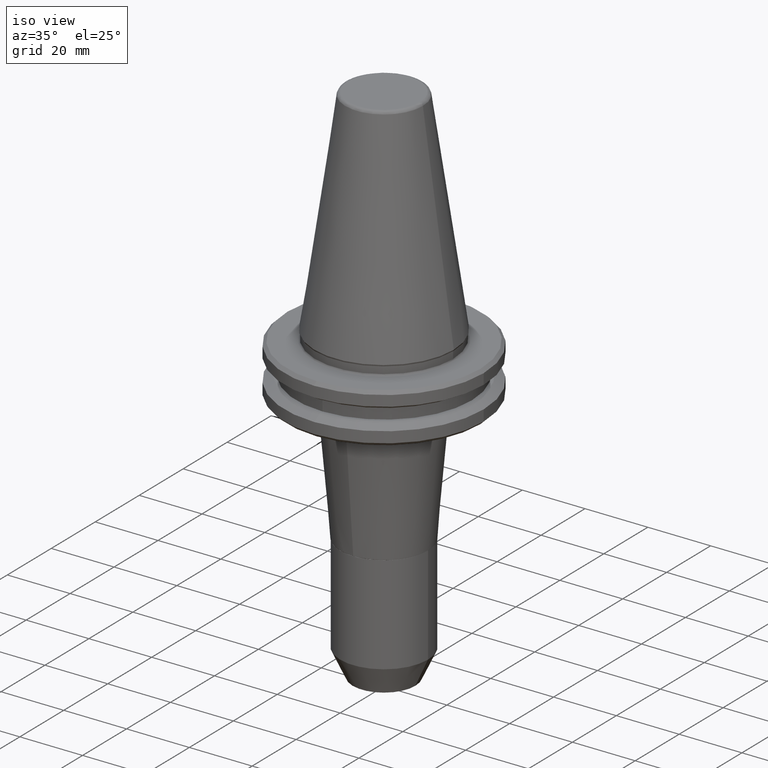
[diagram: clean part render]
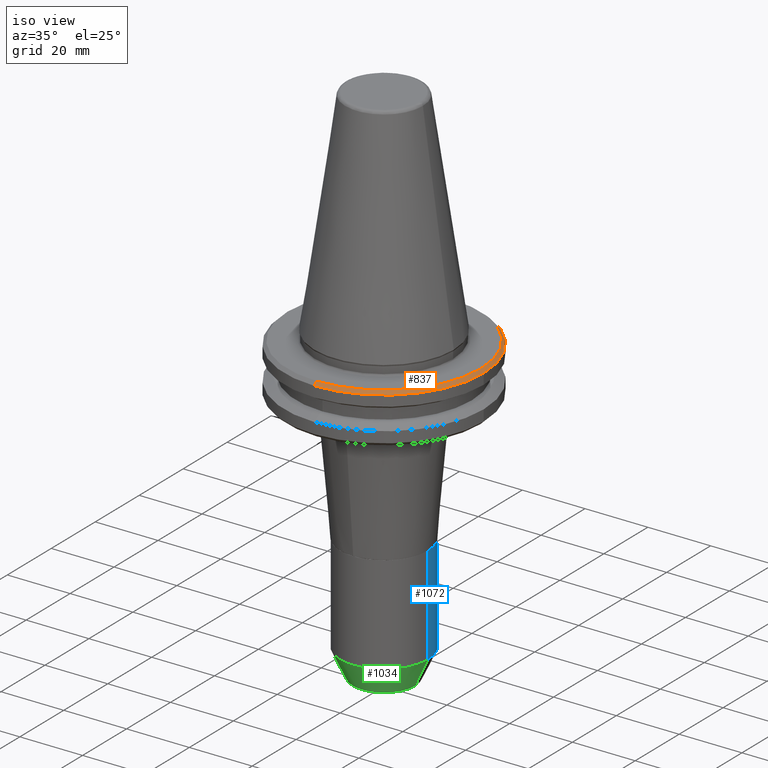
[diagram: same view with three faces highlighted in distinct colors, each labeled with its STEP entity id]
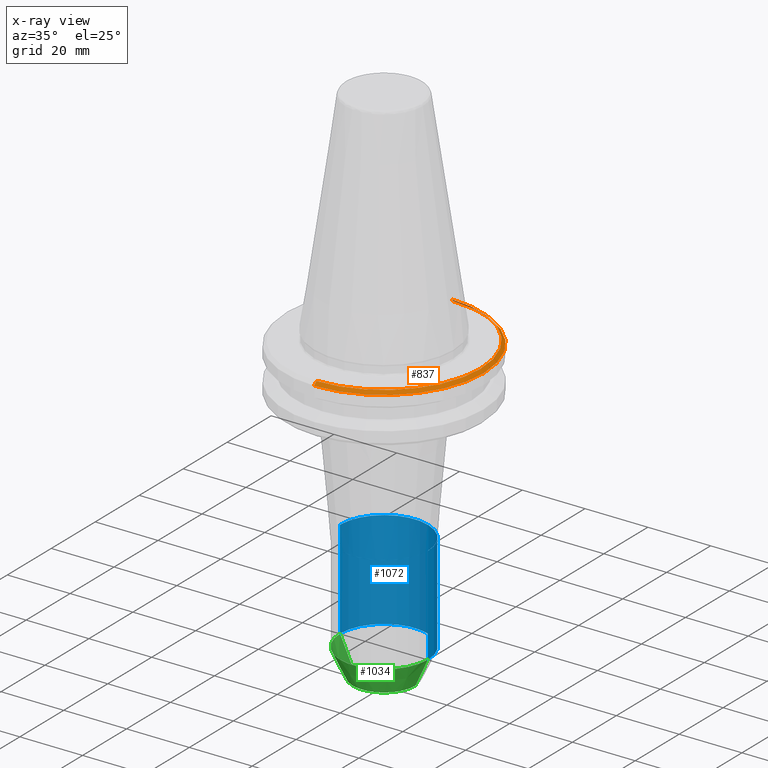
[diagram: x-ray of the same camera — body ghosted, the three highlighted faces saturated]
A machine part, iso view with three faces highlighted in distinct colors.
The next image is the same camera in x-ray (body ghosted, the three faces saturated) — at least one of them is partly hidden behind the body in this view.
Their STEP definitions:

[orange] entity #837 — the highlighted conical surface has half-angle 45 deg.
#10 = LINE ( 'NONE', #776, #688 ) ;
#29 = AXIS2_PLACEMENT_3D ( 'NONE', #595, #594, #592 ) ;
#81 = CARTESIAN_POINT ( 'NONE',  ( 1.761665219730700800E-034, 31.75000000000014600, -4.200000000000148500 ) ) ;
#166 = VERTEX_POINT ( 'NONE', #1407 ) ;
#189 = AXIS2_PLACEMENT_3D ( 'NONE', #289, #288, #286 ) ;
#238 = CONICAL_SURFACE ( 'NONE', #676, 31.63284271250072500, 0.7853981633974475000 ) ;
#286 = DIRECTION ( 'NONE',  ( -1.000000000000000000, 0.0000000000000000000, 0.0000000000000000000 ) ) ;
#288 = DIRECTION ( 'NONE',  ( -0.0000000000000000000, -0.0000000000000000000, -1.000000000000000000 ) ) ;
#289 = CARTESIAN_POINT ( 'NONE',  ( 0.0000000000000000000, 0.0000000000000000000, -3.200000000000036100 ) ) ;
#290 = VERTEX_POINT ( 'NONE', #1373 ) ;
#360 = CIRCLE ( 'NONE', #582, 31.75000000000005700 ) ;
#365 = DIRECTION ( 'NONE',  ( -1.000000000000000000, 0.0000000000000000000, 0.0000000000000000000 ) ) ;
#366 = DIRECTION ( 'NONE',  ( -0.0000000000000000000, -0.0000000000000000000, -1.000000000000000000 ) ) ;
#553 = CIRCLE ( 'NONE', #189, 30.74999999999994300 ) ;
#582 = AXIS2_PLACEMENT_3D ( 'NONE', #1137, #366, #365 ) ;
#592 = DIRECTION ( 'NONE',  ( -1.000000000000000000, 0.0000000000000000000, 0.0000000000000000000 ) ) ;
#594 = DIRECTION ( 'NONE',  ( -0.0000000000000000000, -0.0000000000000000000, -1.000000000000000000 ) ) ;
#595 = CARTESIAN_POINT ( 'NONE',  ( 0.0000000000000000000, 0.0000000000000000000, -4.200000000000148500 ) ) ;
#607 = EDGE_LOOP ( 'NONE', ( #1425, #1436, #1442, #1447, #1455 ) ) ;
#661 = EDGE_CURVE ( 'NONE', #290, #1021, #1094, .T. ) ;
#676 = AXIS2_PLACEMENT_3D ( 'NONE', #1287, #1292, #1283 ) ;
#688 = VECTOR ( 'NONE', #774, 1000.000000000000000 ) ;
#698 = VERTEX_POINT ( 'NONE', #1076 ) ;
#774 = DIRECTION ( 'NONE',  ( 1.063259016694285100E-033, 0.7071067811865470200, -0.7071067811865481300 ) ) ;
#776 = CARTESIAN_POINT ( 'NONE',  ( 6.521152202106336400E-049, 31.63284271250072500, -4.082842712500724500 ) ) ;
#837 = ADVANCED_FACE ( 'NONE', ( #856 ), #238, .T. ) ;
#856 = FACE_OUTER_BOUND ( 'NONE', #607, .T. ) ;
#863 = CARTESIAN_POINT ( 'NONE',  ( 3.888253587292864600E-015, -31.75000000000014600, -4.200000000000148500 ) ) ;
#876 = EDGE_CURVE ( 'NONE', #166, #1021, #360, .T. ) ;
#1021 = VERTEX_POINT ( 'NONE', #863 ) ;
#1028 = VECTOR ( 'NONE', #1267, 1000.000000000000000 ) ;
#1062 = EDGE_CURVE ( 'NONE', #698, #1499, #10, .T. ) ;
#1076 = CARTESIAN_POINT ( 'NONE',  ( -5.756711388892833600E-034, 30.74999999999994300, -3.200000000000036100 ) ) ;
#1083 = EDGE_CURVE ( 'NONE', #698, #290, #553, .T. ) ;
#1094 = LINE ( 'NONE', #1190, #1028 ) ;
#1137 = CARTESIAN_POINT ( 'NONE',  ( 0.0000000000000000000, 0.0000000000000000000, -4.200000000000148500 ) ) ;
#1183 = EDGE_CURVE ( 'NONE', #1499, #166, #1240, .T. ) ;
#1190 = CARTESIAN_POINT ( 'NONE',  ( 3.873905957579569500E-015, -31.63284271250072500, -4.082842712500726300 ) ) ;
#1240 = CIRCLE ( 'NONE', #29, 31.75000000000005700 ) ;
#1267 = DIRECTION ( 'NONE',  ( 8.659560562354926700E-017, -0.7071067811865470200, -0.7071067811865481300 ) ) ;
#1283 = DIRECTION ( 'NONE',  ( 0.0000000000000000000, 1.000000000000000000, 2.741965829222291100E-017 ) ) ;
#1287 = CARTESIAN_POINT ( 'NONE',  ( 6.521152202106336400E-049, 5.945690617847653900E-033, -4.082842712500725400 ) ) ;
#1292 = DIRECTION ( 'NONE',  ( 1.503675321724537800E-033, 1.370982914611145800E-017, -1.000000000000000000 ) ) ;
#1373 = CARTESIAN_POINT ( 'NONE',  ( 3.827021247335484400E-015, -30.74999999999994300, -3.200000000000036100 ) ) ;
#1407 = CARTESIAN_POINT ( 'NONE',  ( 31.75000000000005700, 0.0000000000000000000, -4.200000000000148500 ) ) ;
#1425 = ORIENTED_EDGE ( 'NONE', *, *, #1083, .T. ) ;
#1436 = ORIENTED_EDGE ( 'NONE', *, *, #661, .T. ) ;
#1442 = ORIENTED_EDGE ( 'NONE', *, *, #876, .F. ) ;
#1447 = ORIENTED_EDGE ( 'NONE', *, *, #1183, .F. ) ;
#1455 = ORIENTED_EDGE ( 'NONE', *, *, #1062, .F. ) ;
#1499 = VERTEX_POINT ( 'NONE', #81 ) ;

[blue] entity #1072 — the highlighted cylindrical surface (partial cylindrical patch) has radius 14 mm, axis along (0, 0, 1).
#156 = AXIS2_PLACEMENT_3D ( 'NONE', #1015, #1059, #1058 ) ;
#194 = AXIS2_PLACEMENT_3D ( 'NONE', #771, #459, #767 ) ;
#378 = EDGE_LOOP ( 'NONE', ( #731, #719, #737, #453 ) ) ;
#453 = ORIENTED_EDGE ( 'NONE', *, *, #1000, .F. ) ;
#459 = DIRECTION ( 'NONE',  ( 0.0000000000000000000, 0.0000000000000000000, 1.000000000000000000 ) ) ;
#499 = CARTESIAN_POINT ( 'NONE',  ( -13.99999999996790100, -4.307171891657954200E-009, -60.08911966303885800 ) ) ;
#514 = DIRECTION ( 'NONE',  ( 0.0000000000000000000, 0.0000000000000000000, 1.000000000000000000 ) ) ;
#529 = CARTESIAN_POINT ( 'NONE',  ( -14.00000000000000000, 1.714505518806294600E-015, -91.42197231799998700 ) ) ;
#532 = DIRECTION ( 'NONE',  ( 1.000000000000000000, 0.0000000000000000000, 0.0000000000000000000 ) ) ;
#534 = DIRECTION ( 'NONE',  ( 0.0000000000000000000, 0.0000000000000000000, 1.000000000000000000 ) ) ;
#536 = CARTESIAN_POINT ( 'NONE',  ( 0.0000000000000000000, 0.0000000000000000000, -91.42197231799997300 ) ) ;
#538 = CARTESIAN_POINT ( 'NONE',  ( 13.99999999997860200, 0.0000000000000000000, -60.08911966307772400 ) ) ;
#576 = LINE ( 'NONE', #851, #1348 ) ;
#719 = ORIENTED_EDGE ( 'NONE', *, *, #1323, .T. ) ;
#722 = FACE_OUTER_BOUND ( 'NONE', #378, .T. ) ;
#731 = ORIENTED_EDGE ( 'NONE', *, *, #1288, .T. ) ;
#737 = ORIENTED_EDGE ( 'NONE', *, *, #1107, .T. ) ;
#767 = DIRECTION ( 'NONE',  ( 1.000000000000000000, 0.0000000000000000000, 0.0000000000000000000 ) ) ;
#771 = CARTESIAN_POINT ( 'NONE',  ( 0.0000000000000000000, 0.0000000000000000000, -91.42197231799998700 ) ) ;
#792 = VERTEX_POINT ( 'NONE', #1030 ) ;
#849 = DIRECTION ( 'NONE',  ( 0.0000000000000000000, 0.0000000000000000000, 1.000000000000000000 ) ) ;
#851 = CARTESIAN_POINT ( 'NONE',  ( 14.00000000000000000, 0.0000000000000000000, -91.42197231799998700 ) ) ;
#852 = VERTEX_POINT ( 'NONE', #1199 ) ;
#854 = AXIS2_PLACEMENT_3D ( 'NONE', #536, #534, #532 ) ;
#934 = VECTOR ( 'NONE', #514, 1000.000000000000000 ) ;
#937 = LINE ( 'NONE', #529, #934 ) ;
#983 = CIRCLE ( 'NONE', #854, 14.00000000000000000 ) ;
#1000 = EDGE_CURVE ( 'NONE', #852, #1291, #576, .T. ) ;
#1015 = CARTESIAN_POINT ( 'NONE',  ( 0.0000000000000000000, 0.0000000000000000000, -60.08911966315546500 ) ) ;
#1030 = CARTESIAN_POINT ( 'NONE',  ( -14.00000000000000500, 1.714505518806295000E-015, -91.42197231799997300 ) ) ;
#1058 = DIRECTION ( 'NONE',  ( 0.0000000000000000000, 1.000000000000000000, 4.956352788520316300E-016 ) ) ;
#1059 = DIRECTION ( 'NONE',  ( -0.0000000000000000000, 2.478176394270820100E-016, -1.000000000000000000 ) ) ;
#1072 = ADVANCED_FACE ( 'NONE', ( #722 ), #1439, .T. ) ;
#1107 = EDGE_CURVE ( 'NONE', #1342, #1291, #1314, .T. ) ;
#1199 = CARTESIAN_POINT ( 'NONE',  ( 14.00000000000000500, 0.0000000000000000000, -91.42197231799997300 ) ) ;
#1288 = EDGE_CURVE ( 'NONE', #852, #792, #983, .T. ) ;
#1291 = VERTEX_POINT ( 'NONE', #538 ) ;
#1314 = CIRCLE ( 'NONE', #156, 13.99999999995719900 ) ;
#1323 = EDGE_CURVE ( 'NONE', #792, #1342, #937, .T. ) ;
#1342 = VERTEX_POINT ( 'NONE', #499 ) ;
#1348 = VECTOR ( 'NONE', #849, 1000.000000000000000 ) ;
#1439 = CYLINDRICAL_SURFACE ( 'NONE', #194, 14.00000000000000000 ) ;

[green] entity #1034 — the highlighted conical surface has half-angle 25 deg.
#73 = EDGE_LOOP ( 'NONE', ( #872, #897, #920, #916 ) ) ;
#149 = AXIS2_PLACEMENT_3D ( 'NONE', #720, #718, #709 ) ;
#181 = AXIS2_PLACEMENT_3D ( 'NONE', #496, #495, #493 ) ;
#253 = AXIS2_PLACEMENT_3D ( 'NONE', #831, #825, #823 ) ;
#493 = DIRECTION ( 'NONE',  ( 1.000000000000000000, 0.0000000000000000000, 0.0000000000000000000 ) ) ;
#495 = DIRECTION ( 'NONE',  ( 0.0000000000000000000, -0.0000000000000000000, 1.000000000000000000 ) ) ;
#496 = CARTESIAN_POINT ( 'NONE',  ( 0.0000000000000000000, 0.0000000000000000000, -99.99999999999997200 ) ) ;
#525 = CIRCLE ( 'NONE', #149, 14.00000000000000000 ) ;
#560 = DIRECTION ( 'NONE',  ( 0.4226182617422460400, 0.0000000000000000000, 0.9063077870359287400 ) ) ;
#568 = CARTESIAN_POINT ( 'NONE',  ( 13.99999999999999800, 0.0000000000000000000, -91.42197231799998700 ) ) ;
#616 = DIRECTION ( 'NONE',  ( -0.4226182617422460400, 5.175581015038599500E-017, 0.9063077870359287400 ) ) ;
#619 = CARTESIAN_POINT ( 'NONE',  ( -13.99999999999999800, 1.714505518806294400E-015, -91.42197231799998700 ) ) ;
#620 = VERTEX_POINT ( 'NONE', #1279 ) ;
#665 = CONICAL_SURFACE ( 'NONE', #253, 13.99999999999999800, 0.4363323130002889100 ) ;
#709 = DIRECTION ( 'NONE',  ( 1.000000000000000000, 0.0000000000000000000, 0.0000000000000000000 ) ) ;
#718 = DIRECTION ( 'NONE',  ( 0.0000000000000000000, 0.0000000000000000000, 1.000000000000000000 ) ) ;
#720 = CARTESIAN_POINT ( 'NONE',  ( 0.0000000000000000000, 0.0000000000000000000, -91.42197231799997300 ) ) ;
#792 = VERTEX_POINT ( 'NONE', #1030 ) ;
#809 = CIRCLE ( 'NONE', #181, 10.00000000000001200 ) ;
#823 = DIRECTION ( 'NONE',  ( 1.000000000000000000, 0.0000000000000000000, 0.0000000000000000000 ) ) ;
#825 = DIRECTION ( 'NONE',  ( 0.0000000000000000000, -0.0000000000000000000, 1.000000000000000000 ) ) ;
#831 = CARTESIAN_POINT ( 'NONE',  ( 0.0000000000000000000, 0.0000000000000000000, -91.42197231799998700 ) ) ;
#852 = VERTEX_POINT ( 'NONE', #1199 ) ;
#858 = CARTESIAN_POINT ( 'NONE',  ( 10.00000000000001200, 0.0000000000000000000, -99.99999999999997200 ) ) ;
#872 = ORIENTED_EDGE ( 'NONE', *, *, #1172, .F. ) ;
#897 = ORIENTED_EDGE ( 'NONE', *, *, #1339, .T. ) ;
#916 = ORIENTED_EDGE ( 'NONE', *, *, #1102, .F. ) ;
#920 = ORIENTED_EDGE ( 'NONE', *, *, #1244, .T. ) ;
#1026 = VERTEX_POINT ( 'NONE', #858 ) ;
#1030 = CARTESIAN_POINT ( 'NONE',  ( -14.00000000000000500, 1.714505518806295000E-015, -91.42197231799997300 ) ) ;
#1034 = ADVANCED_FACE ( 'NONE', ( #1135 ), #665, .T. ) ;
#1101 = VECTOR ( 'NONE', #560, 1000.000000000000200 ) ;
#1102 = EDGE_CURVE ( 'NONE', #792, #852, #525, .T. ) ;
#1135 = FACE_OUTER_BOUND ( 'NONE', #73, .T. ) ;
#1142 = LINE ( 'NONE', #568, #1101 ) ;
#1172 = EDGE_CURVE ( 'NONE', #620, #792, #1405, .T. ) ;
#1199 = CARTESIAN_POINT ( 'NONE',  ( 14.00000000000000500, 0.0000000000000000000, -91.42197231799997300 ) ) ;
#1244 = EDGE_CURVE ( 'NONE', #1026, #852, #1142, .T. ) ;
#1279 = CARTESIAN_POINT ( 'NONE',  ( -10.00000000000001200, 1.469576158976824700E-015, -99.99999999999997200 ) ) ;
#1339 = EDGE_CURVE ( 'NONE', #620, #1026, #809, .T. ) ;
#1392 = VECTOR ( 'NONE', #616, 1000.000000000000200 ) ;
#1405 = LINE ( 'NONE', #619, #1392 ) ;